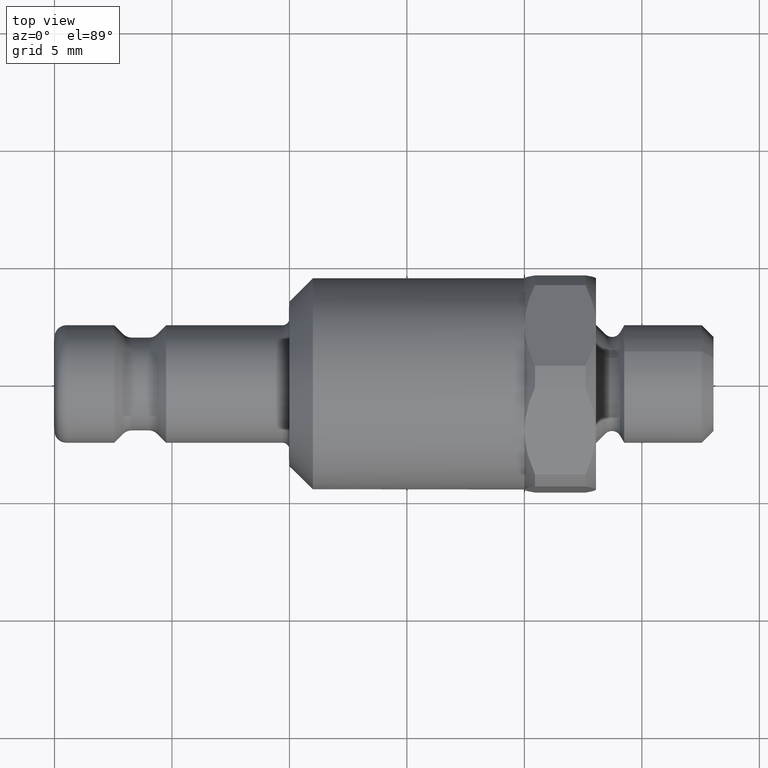
[diagram: clean part render]
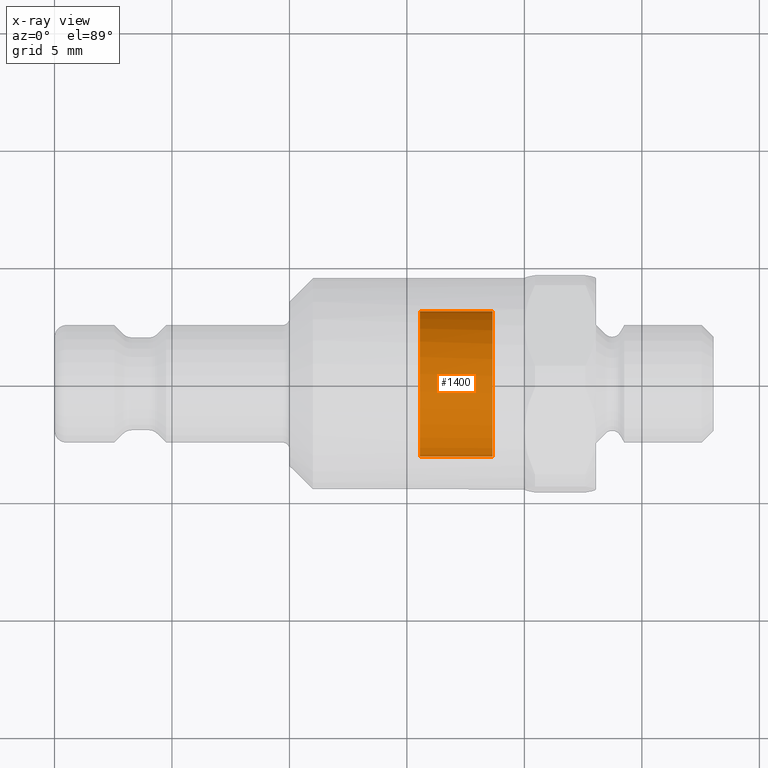
[diagram: x-ray — body ghosted, one internal face saturated and labeled with its STEP entity id]
A machine part, top view, then the same camera in x-ray: the body is ghosted and one INTERNAL B-rep face — a face not visible from any outside direction — is saturated and labeled: STEP entity #1400.
In plain terms, the highlighted cylindrical surface (bore or boss wall) has radius 3.0979 mm, axis along (1, 0, 0).
Its self-contained STEP definition (entity closure, byte-faithful):
#1354=CARTESIAN_POINT('',(18.640278837150291,-3.097877489069156,-3.793806E-016));
#1355=VERTEX_POINT('',#1354);
#1356=CARTESIAN_POINT('',(18.640278837150291,0.0,0.0));
#1357=DIRECTION('',(1.0,0.0,0.0));
#1358=DIRECTION('',(0.0,1.0,0.0));
#1359=AXIS2_PLACEMENT_3D('',#1356,#1357,#1358);
#1360=CIRCLE('',#1359,3.097877489069156);
#1361=EDGE_CURVE('',#1355,#1355,#1360,.T.);
#1377=CARTESIAN_POINT('',(15.549999999999999,-3.097877489069156,3.793806E-016));
#1378=VERTEX_POINT('',#1377);
#1379=CARTESIAN_POINT('',(15.549999999999999,0.0,0.0));
#1380=DIRECTION('',(-1.0,0.0,0.0));
#1381=DIRECTION('',(0.0,1.0,0.0));
#1382=AXIS2_PLACEMENT_3D('',#1379,#1380,#1381);
#1383=CIRCLE('',#1382,3.097877489069156);
#1384=EDGE_CURVE('',#1378,#1378,#1383,.T.);
#1389=CARTESIAN_POINT('',(16.65270559183924,0.0,0.0));
#1390=DIRECTION('',(1.0,0.0,0.0));
#1391=DIRECTION('',(0.0,1.0,0.0));
#1392=AXIS2_PLACEMENT_3D('',#1389,#1390,#1391);
#1393=CYLINDRICAL_SURFACE('',#1392,3.097877489069156);
#1394=ORIENTED_EDGE('',*,*,#1384,.F.);
#1395=EDGE_LOOP('',(#1394));
#1396=FACE_OUTER_BOUND('',#1395,.T.);
#1397=ORIENTED_EDGE('',*,*,#1361,.F.);
#1398=EDGE_LOOP('',(#1397));
#1399=FACE_BOUND('',#1398,.T.);
#1400=ADVANCED_FACE('',(#1396,#1399),#1393,.T.);